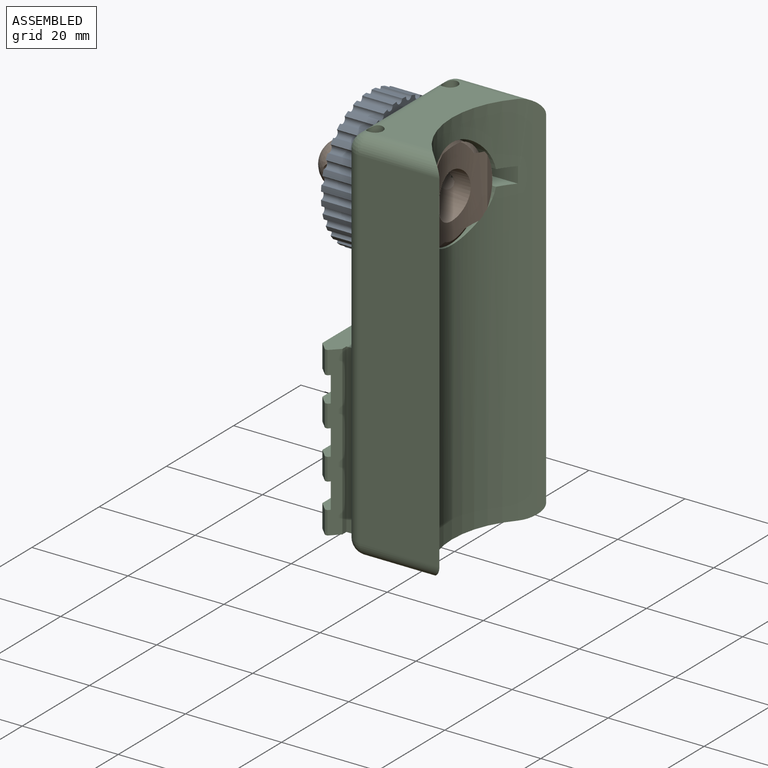
[diagram: assembled view]
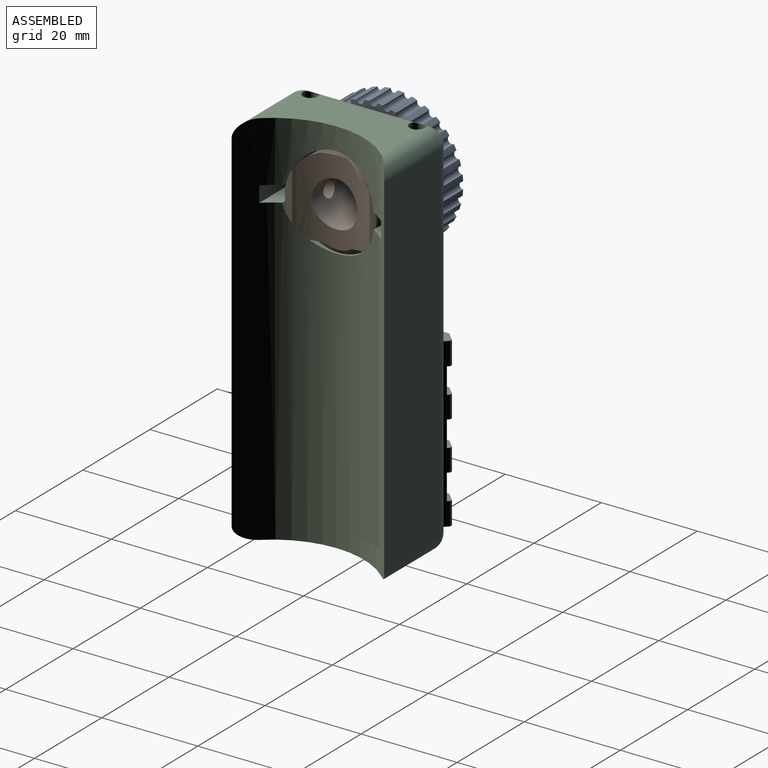
[diagram: assembled view, second angle]
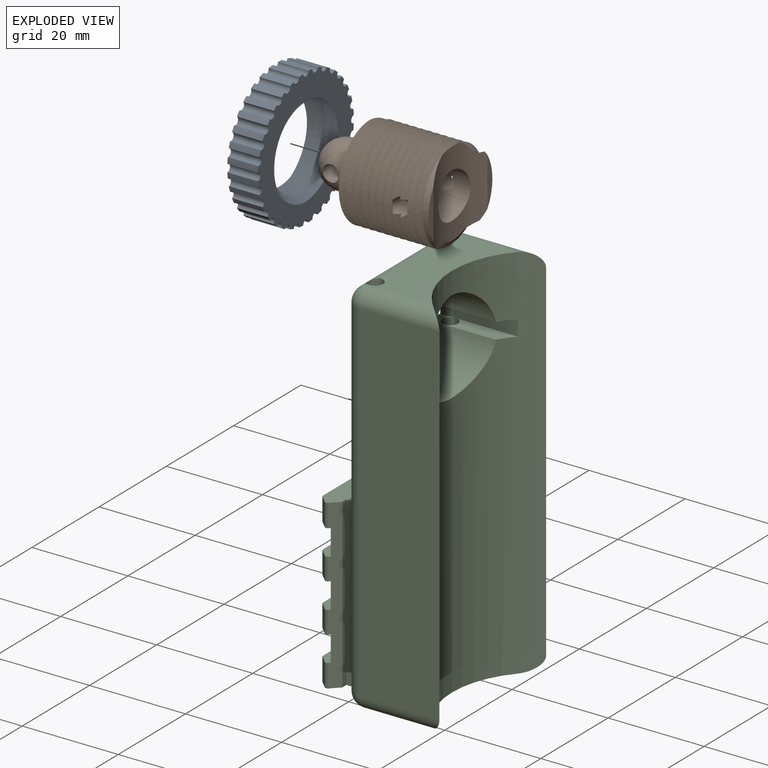
[diagram: exploded view]
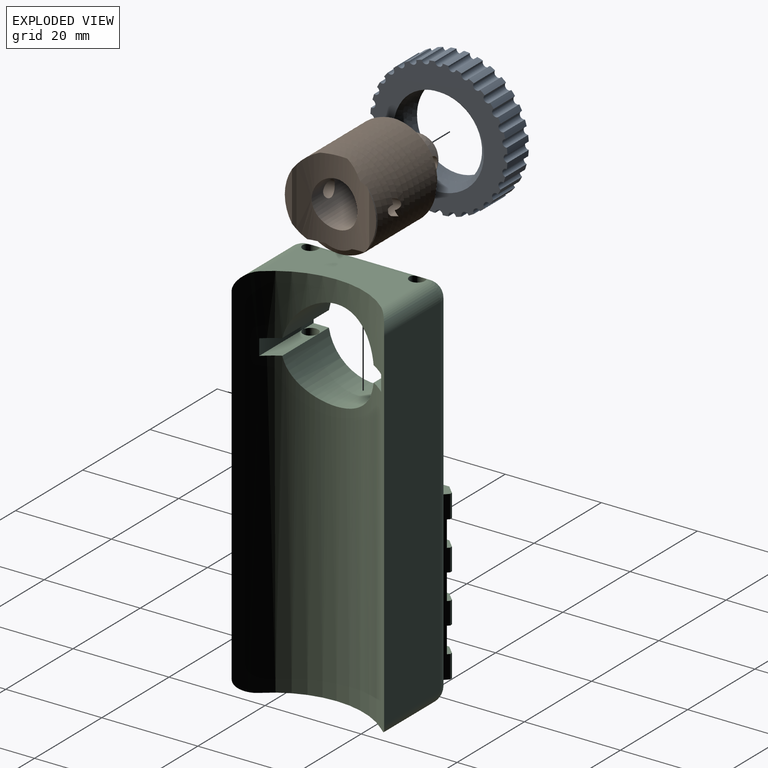
[diagram: exploded view, second angle]
ASSEMBLY  parts=3 mates=2
PART A: 69 faces, bbox 29.7x29.7x9.3 mm
  f0: cylinder r=0.79mm len=6.35mm, axis (0,0,-1), area 15.6mm2, adj f1,f64,f65,f66
  f1: cylinder r=14.29mm len=6.35mm, axis (0,0,-1), area 7.7mm2, adj f0,f2,f65,f66
  f2: cylinder r=0.79mm len=6.35mm, axis (0,0,-1), area 15.6mm2, adj f1,f3,f65,f66
  f3: cylinder r=14.29mm len=6.35mm, axis (0,0,-1), area 7.7mm2, adj f2,f4,f65,f66
  f4: cylinder r=0.79mm len=6.35mm, axis (0,0,-1), area 15.6mm2, adj f3,f5,f65,f66
  f5: cylinder r=14.29mm len=6.35mm, axis (0,0,-1), area 7.7mm2, adj f4,f6,f65,f66
  f6: cylinder r=0.79mm len=6.35mm, axis (0,0,-1), area 15.6mm2, adj f5,f7,f65,f66
  f7: cylinder r=14.29mm len=6.35mm, axis (0,0,-1), area 7.7mm2, adj f6,f8,f65,f66
  f8: cylinder r=0.79mm len=6.35mm, axis (0,0,-1), area 15.6mm2, adj f7,f9,f65,f66
  f9: cylinder r=14.29mm len=6.35mm, axis (0,0,-1), area 7.7mm2, adj f8,f10,f65,f66
  f10: cylinder r=0.79mm len=6.35mm, axis (0,0,-1), area 15.6mm2, adj f9,f11,f65,f66
  f11: cylinder r=14.29mm len=6.35mm, axis (0,0,-1), area 7.7mm2, adj f10,f12,f65,f66
  f12: cylinder r=0.79mm len=6.35mm, axis (0,0,-1), area 15.6mm2, adj f11,f13,f65,f66
  f13: cylinder r=14.29mm len=6.35mm, axis (0,0,-1), area 7.7mm2, adj f12,f14,f65,f66
  f14: cylinder r=0.79mm len=6.35mm, axis (0,0,-1), area 15.6mm2, adj f13,f15,f65,f66
  f15: cylinder r=14.29mm len=6.35mm, axis (0,0,-1), area 7.7mm2, adj f14,f16,f65,f66
  f16: cylinder r=0.79mm len=6.35mm, axis (0,0,-1), area 15.6mm2, adj f15,f17,f65,f66
  f17: cylinder r=14.29mm len=6.35mm, axis (0,0,-1), area 7.7mm2, adj f16,f18,f65,f66
  f18: cylinder r=0.79mm len=6.35mm, axis (0,0,-1), area 15.6mm2, adj f17,f19,f65,f66
  f19: cylinder r=14.29mm len=6.35mm, axis (0,0,-1), area 7.7mm2, adj f18,f20,f65,f66
  f20: cylinder r=0.79mm len=6.35mm, axis (0,0,-1), area 15.6mm2, adj f19,f21,f65,f66
  f21: cylinder r=14.29mm len=6.35mm, axis (0,0,-1), area 7.7mm2, adj f20,f22,f65,f66
  f22: cylinder r=0.79mm len=6.35mm, axis (0,0,-1), area 15.6mm2, adj f21,f23,f65,f66
  f23: cylinder r=14.29mm len=6.35mm, axis (0,0,-1), area 7.7mm2, adj f22,f24,f65,f66
  f24: cylinder r=0.79mm len=6.35mm, axis (0,0,-1), area 15.6mm2, adj f23,f25,f65,f66
  f25: cylinder r=14.29mm len=6.35mm, axis (0,0,-1), area 7.7mm2, adj f24,f26,f65,f66
  f26: cylinder r=0.79mm len=6.35mm, axis (0,0,-1), area 15.6mm2, adj f25,f27,f65,f66
  f27: cylinder r=14.29mm len=6.35mm, axis (0,0,-1), area 7.7mm2, adj f26,f28,f65,f66
  f28: cylinder r=0.79mm len=6.35mm, axis (0,0,-1), area 15.6mm2, adj f27,f29,f65,f66
  f29: cylinder r=14.29mm len=6.35mm, axis (0,0,-1), area 7.7mm2, adj f28,f30,f65,f66
  f30: cylinder r=0.79mm len=6.35mm, axis (0,0,-1), area 15.6mm2, adj f29,f31,f65,f66
  f31: cylinder r=14.29mm len=6.35mm, axis (0,0,-1), area 7.7mm2, adj f30,f32,f65,f66
  f32: cylinder r=0.79mm len=6.35mm, axis (0,0,-1), area 15.6mm2, adj f31,f33,f65,f66
  f33: cylinder r=14.29mm len=6.35mm, axis (0,0,-1), area 7.7mm2, adj f32,f34,f65,f66
  f34: cylinder r=0.79mm len=6.35mm, axis (0,0,-1), area 15.6mm2, adj f33,f35,f65,f66
  f35: cylinder r=14.29mm len=6.35mm, axis (0,0,-1), area 7.7mm2, adj f34,f36,f65,f66
  f36: cylinder r=0.79mm len=6.35mm, axis (0,0,-1), area 15.6mm2, adj f35,f37,f65,f66
  f37: cylinder r=14.29mm len=6.35mm, axis (0,0,-1), area 7.7mm2, adj f36,f38,f65,f66
  f38: cylinder r=0.79mm len=6.35mm, axis (0,0,-1), area 15.6mm2, adj f37,f39,f65,f66
  f39: cylinder r=14.29mm len=6.35mm, axis (0,0,-1), area 7.7mm2, adj f38,f40,f65,f66
  f40: cylinder r=0.79mm len=6.35mm, axis (0,0,-1), area 15.6mm2, adj f39,f41,f65,f66
  f41: cylinder r=14.29mm len=6.35mm, axis (0,0,-1), area 7.7mm2, adj f40,f42,f65,f66
  f42: cylinder r=0.79mm len=6.35mm, axis (0,0,-1), area 15.6mm2, adj f41,f43,f65,f66
  f43: cylinder r=14.29mm len=6.35mm, axis (0,0,-1), area 7.7mm2, adj f42,f44,f65,f66
  f44: cylinder r=0.79mm len=6.35mm, axis (0,0,-1), area 15.6mm2, adj f43,f45,f65,f66
  f45: cylinder r=14.29mm len=6.35mm, axis (0,0,-1), area 7.7mm2, adj f44,f46,f65,f66
  f46: cylinder r=0.79mm len=6.35mm, axis (0,0,-1), area 15.6mm2, adj f45,f47,f65,f66
  f47: cylinder r=14.29mm len=6.35mm, axis (0,0,-1), area 7.7mm2, adj f46,f48,f65,f66
  f48: cylinder r=0.79mm len=6.35mm, axis (0,0,-1), area 15.6mm2, adj f47,f49,f65,f66
  f49: cylinder r=14.29mm len=6.35mm, axis (0,0,-1), area 7.7mm2, adj f48,f50,f65,f66
  f50: cylinder r=0.79mm len=6.35mm, axis (0,0,-1), area 15.6mm2, adj f49,f51,f65,f66
  f51: cylinder r=14.29mm len=6.35mm, axis (0,0,-1), area 7.7mm2, adj f50,f52,f65,f66
  f52: cylinder r=0.79mm len=6.35mm, axis (0,0,-1), area 15.6mm2, adj f51,f53,f65,f66
  f53: cylinder r=14.29mm len=6.35mm, axis (0,0,-1), area 7.7mm2, adj f52,f54,f65,f66
  f54: cylinder r=0.79mm len=6.35mm, axis (0,0,-1), area 15.6mm2, adj f53,f55,f65,f66
  f55: cylinder r=14.29mm len=6.35mm, axis (0,0,-1), area 7.7mm2, adj f54,f56,f65,f66
  f56: cylinder r=0.79mm len=6.35mm, axis (0,0,-1), area 15.6mm2, adj f55,f57,f65,f66
  f57: cylinder r=14.29mm len=6.35mm, axis (0,0,-1), area 7.7mm2, adj f56,f58,f65,f66
  f58: cylinder r=0.79mm len=6.35mm, axis (0,0,-1), area 15.6mm2, adj f57,f59,f65,f66
  f59: cylinder r=14.29mm len=6.35mm, axis (0,0,-1), area 7.7mm2, adj f58,f60,f65,f66
  f60: cylinder r=0.79mm len=6.35mm, axis (0,0,-1), area 15.6mm2, adj f59,f61,f65,f66
  f61: cylinder r=14.29mm len=6.35mm, axis (0,0,-1), area 7.7mm2, adj f60,f62,f65,f66
  f62: cylinder r=0.79mm len=6.35mm, axis (0,0,-1), area 15.6mm2, adj f61,f64,f65,f66
  f63: cylinder r=8.73mm len=17.46mm, axis (0,0,-1), area 3.1mm2, adj f65,f66,f67,f68
  f64: cylinder r=14.29mm len=6.35mm, axis (0,0,-1), area 7.7mm2, adj f0,f62,f65,f66
  f65: plane 29.67x29.67mm, normal (0,0,1), area 331.5mm2, adj f0,f1,f2,f3,f4,f5,f6,f7
  f66: plane 29.67x29.67mm, normal (0,0,-1), area 331.5mm2, adj f0,f1,f2,f3,f4,f5,f6,f7
  f67: bspline ~23.31x20.19mm, area 373mm2, adj f63,f65,f66,f68
  f68: bspline ~23.31x20.19mm, area 372.9mm2, adj f63,f65,f66,f67
PART B: 28 faces, bbox 20.2x23.1x29.7 mm
  f0: cylinder r=9.53mm len=18.75mm, axis (0,0,1), area 0.3mm2, adj f13,f14,f20,f24
  f1: cylinder r=9.53mm len=18.82mm, axis (0,0,1), area 0.3mm2, adj f13,f14,f16,f22
  f2: cylinder r=9.53mm len=18.82mm, axis (0,0,1), area 0.3mm2, adj f13,f14,f21,f23
  f3: cylinder r=9.53mm len=19.05mm, axis (0,0,1), area 1.6mm2, adj f14,f15,f16,f18,f19
  f4: cylinder r=9.53mm len=16.7mm, axis (0,0,1), area 19mm2, adj f6,f15,f19
  f5: cylinder r=9.53mm len=12.72mm, axis (0,0,1), area 5mm2, adj f9,f15,f17
  f6: plane 10.23x1.49mm, normal (0,0,-1), area 10.3mm2, adj f4,f15
  f7: cylinder r=4.76mm len=10.92mm, axis (0,0,1), area 308.1mm2, adj f11,f13,f14,f15
  f8: cylinder r=9.53mm len=19.05mm, axis (0,0,1), area -0.3mm2, adj f10,f13,f23,f25
  f9: plane 10.23x1.49mm, normal (0,0,-1), area 10.3mm2, adj f5,f15
  f10: plane 18.88x18.86mm, normal (0,0,1), area 175.2mm2, adj f8,f12,f23,f25
  f11: plane 9.53x9.53mm, normal (0,0,-1), area 71.3mm2, adj f7
  f12: cylinder r=4.76mm len=9.53mm, axis (0,0,-1), area 142.5mm2, adj f10,f26,f27
  f13: cylinder r=1.71mm len=5.01mm, axis (0,-1,0), area 44.8mm2, adj f0,f1,f2,f7,f8,f16,f18,f19
  f14: cylinder r=1.71mm len=5.01mm, axis (0,-1,0), area 44.9mm2, adj f0,f1,f2,f3,f7,f16,f18,f20
  f15: cylinder r=19.05mm len=17.76mm, axis (1,0,0), area 182mm2, adj f3,f4,f5,f6,f7,f9,f16,f17
  f16: bspline ~22x19.05mm, area 230.3mm2, adj f1,f3,f13,f14,f15,f17,f19
  f17: bspline ~19.05x11mm, area 23.9mm2, adj f5,f15,f16
  f18: bspline ~22x14.29mm, area 40.4mm2, adj f3,f13,f14,f20
  f19: bspline ~22x19.05mm, area 189.7mm2, adj f3,f4,f13,f15,f16
  f20: bspline ~22x14.29mm, area 38.8mm2, adj f0,f13,f14,f18
  f21: bspline ~22x14.29mm, area 38.7mm2, adj f2,f13,f14,f22
  f22: bspline ~22x14.29mm, area 38.7mm2, adj f1,f13,f14,f21
  f23: bspline ~22x19.05mm, area 652.1mm2, adj f2,f8,f10,f13,f14,f25
  f24: bspline ~22x14.29mm, area 38.8mm2, adj f0,f13,f14,f25
  f25: bspline ~22x19.05mm, area 650.4mm2, adj f8,f10,f13,f14,f23,f24
  f26: cylinder r=1.71mm len=8.89mm, axis (0,-1,0), area 95.7mm2, adj f12,f27
  f27: sphere r=4.76mm, area 142.5mm2, adj f12,f26
PART C: 68 faces, bbox 29.2x31.8x79.4 mm
  f0: plane 60.26x25.4mm, normal (-1,0,0), area 919.2mm2, adj f24,f28,f36,f38,f40,f45,f59,f61
  f1: plane 18.09x4.76mm, normal (-1,0,0), area 86.1mm2, adj f9,f13,f36,f52
  f2: plane 18.09x4.65mm, normal (-1,0,0), area 84.1mm2, adj f10,f14,f49,f53
  f3: plane 18.09x4.65mm, normal (-1,0,0), area 84.1mm2, adj f11,f15,f46,f50
  f4: plane 34.93x1.83mm, normal (0.71,0.71,0), area 81.1mm2, adj f5,f6,f7,f8,f25,f35,f36,f46
  f5: plane 4.76x0.51mm, normal (0,1,0), area 2.4mm2, adj f4,f9,f36,f52
  f6: plane 4.65x0.51mm, normal (0,1,0), area 2.4mm2, adj f4,f10,f49,f53
  f7: plane 4.65x0.51mm, normal (0,1,0), area 2.4mm2, adj f4,f11,f46,f50
  f8: plane 4.79x0.51mm, normal (0,1,0), area 2.4mm2, adj f4,f12,f35,f47
  f9: plane 4.76x1.83mm, normal (-0.71,0.71,0), area 12.3mm2, adj f1,f5,f36,f52
  f10: plane 4.65x1.83mm, normal (-0.71,0.71,0), area 12mm2, adj f2,f6,f49,f53
  f11: plane 4.65x1.83mm, normal (-0.71,0.71,0), area 12mm2, adj f3,f7,f46,f50
  f12: plane 4.79x1.83mm, normal (-0.71,0.71,0), area 12.4mm2, adj f8,f26,f35,f47
  f13: plane 4.76x1.83mm, normal (-0.71,-0.71,0), area 12.3mm2, adj f1,f17,f36,f52
  f14: plane 4.65x1.83mm, normal (-0.71,-0.71,0), area 12mm2, adj f2,f18,f49,f53
  f15: plane 4.65x1.83mm, normal (-0.71,-0.71,0), area 12mm2, adj f3,f19,f46,f50
  f16: plane 4.79x1.83mm, normal (-0.71,-0.71,0), area 12.4mm2, adj f20,f26,f35,f47
  f17: plane 4.76x0.51mm, normal (0,-1,0), area 2.4mm2, adj f13,f21,f36,f52
  f18: plane 4.65x0.51mm, normal (0,-1,0), area 2.4mm2, adj f14,f21,f49,f53
  f19: plane 4.65x0.51mm, normal (0,-1,0), area 2.4mm2, adj f15,f21,f46,f50
  f20: plane 4.79x0.51mm, normal (0,-1,0), area 2.4mm2, adj f16,f21,f35,f47
  f21: plane 34.93x1.83mm, normal (0.71,-0.71,0), area 81.1mm2, adj f17,f18,f19,f20,f27,f35,f36,f46
  f22: cylinder r=1.59mm len=63.44mm, axis (0,0,1), area 631.7mm2, adj f35,f40,f59
  f23: cylinder r=1.59mm len=63.44mm, axis (0,0,1), area 631.7mm2, adj f35,f45,f61
  f24: plane 34.93x8.33mm, normal (0,1,0), area 182.2mm2, adj f0,f25,f35,f36,f61
  f25: plane 34.93x1.22mm, normal (1,0,0), area 42.6mm2, adj f4,f24,f35,f36
  f26: plane 18.09x4.79mm, normal (-1,0,0), area 86.6mm2, adj f12,f16,f35,f47
  f27: plane 34.93x1.22mm, normal (1,0,0), area 42.6mm2, adj f21,f28,f35,f36
  f28: plane 34.93x8.33mm, normal (0,-1,0), area 182.2mm2, adj f0,f27,f35,f36,f59
  f29: plane 25.4x9.46mm, normal (-1,0,0), area 125.7mm2, adj f39,f42,f43,f56,f63,f66
  f30: plane 73.03x16.66mm, normal (0,-1,0), area 1216.6mm2, adj f31,f55,f58,f63
  f31: cylinder r=19.05mm len=79.38mm, axis (0,0,1), area 2636.3mm2, adj f30,f32,f35,f37,f38,f39,f40,f41
  f32: plane 73.03x16.66mm, normal (0,1,0), area 1216.6mm2, adj f31,f57,f60,f66
  f33: cylinder r=1.59mm len=12.64mm, axis (0,0,1), area 125mm2, adj f37,f42,f56
  f34: cylinder r=1.59mm len=12.64mm, axis (0,0,1), area 125mm2, adj f37,f43,f56
  f35: plane 25.49x25.4mm, normal (0,0,-1), area 451.8mm2, adj f4,f8,f12,f16,f20,f21,f22,f23
  f36: plane 21.74x9.32mm, normal (0,0,1), area 164.6mm2, adj f0,f1,f4,f5,f9,f13,f17,f21
  f37: plane 25.4x12.99mm, normal (0,0,1), area 237.6mm2, adj f31,f33,f34,f55,f56,f57
  f38: cylinder r=9.65mm len=19.02mm, axis (-1,0,0), area 336mm2, adj f0,f31,f40,f45
  f39: cylinder r=9.65mm len=19.02mm, axis (-1,0,0), area 336mm2, adj f29,f31,f42,f43
  f40: plane 16.17x3.19mm, normal (0,0,1), area 39.7mm2, adj f0,f22,f31,f38,f41
  f41: plane 16.17x3.3mm, normal (0,1,0), area 53.4mm2, adj f31,f40,f42,f63
  f42: plane 16.17x3.19mm, normal (0,0,-1), area 39.7mm2, adj f29,f31,f33,f39,f41
  f43: plane 16.17x3.19mm, normal (0,0,-1), area 39.7mm2, adj f29,f31,f34,f39,f44
  f44: plane 16.17x3.3mm, normal (0,-1,0), area 53.4mm2, adj f31,f43,f45,f66
  f45: plane 16.17x3.19mm, normal (0,0,1), area 39.7mm2, adj f0,f23,f31,f38,f44
  f46: plane 21.74x2.74mm, normal (0,0,-1), area 56.1mm2, adj f3,f4,f7,f11,f15,f19,f21,f48
  f47: plane 21.74x2.74mm, normal (0,0,1), area 56.1mm2, adj f4,f8,f12,f16,f20,f21,f26,f48
  f48: plane 20.93x5.36mm, normal (-1,0,0), area 112.2mm2, adj f4,f21,f46,f47
  f49: plane 21.74x2.74mm, normal (0,0,-1), area 56.1mm2, adj f2,f4,f6,f10,f14,f18,f21,f51
  f50: plane 21.74x2.74mm, normal (0,0,1), area 56.1mm2, adj f3,f4,f7,f11,f15,f19,f21,f51
  f51: plane 20.93x5.36mm, normal (-1,0,0), area 112.2mm2, adj f4,f21,f49,f50
  f52: plane 21.74x2.74mm, normal (0,0,-1), area 56.1mm2, adj f1,f4,f5,f9,f13,f17,f21,f54
  f53: plane 21.74x2.74mm, normal (0,0,1), area 56.1mm2, adj f2,f4,f6,f10,f14,f18,f21,f54
  f54: plane 20.93x5.36mm, normal (-1,0,0), area 112.2mm2, adj f4,f21,f52,f53
  f55: cylinder r=3.17mm len=16.66mm, axis (1,0,0), area 75.8mm2, adj f30,f31,f37,f62
  f56: cylinder r=3.17mm len=25.4mm, axis (0,-1,0), area 118.5mm2, adj f29,f33,f34,f37,f62,f65
  f57: cylinder r=3.17mm len=16.66mm, axis (-1,0,0), area 75.8mm2, adj f31,f32,f37,f65
  f58: cylinder r=3.17mm len=16.66mm, axis (-1,0,0), area 75.8mm2, adj f30,f31,f35,f64
  f59: cylinder r=3.17mm len=4.88mm, axis (0,1,0), area 20.2mm2, adj f0,f22,f28,f35,f64
  f60: cylinder r=3.17mm len=16.66mm, axis (1,0,0), area 75.8mm2, adj f31,f32,f35,f67
  f61: cylinder r=3.17mm len=4.88mm, axis (0,1,0), area 20.2mm2, adj f0,f23,f24,f35,f67
  f62: sphere r=3.17mm, area 15.8mm2, adj f55,f56,f63
  f63: cylinder r=3.17mm len=73.03mm, axis (0,0,1), area 364.2mm2, adj f0,f29,f30,f41,f62,f64
  f64: sphere r=3.17mm, area 15.8mm2, adj f58,f59,f63
  f65: sphere r=3.17mm, area 15.8mm2, adj f56,f57,f66
  f66: cylinder r=3.17mm len=73.03mm, axis (0,0,-1), area 364.2mm2, adj f0,f29,f32,f44,f65,f67
  f67: sphere r=3.17mm, area 15.8mm2, adj f60,f61,f66
PLACE A rot(axis=(0,-1,0),90deg) t=(-16.93,-9.3,33.67)mm
PLACE B rot(axis=(0,-1,0),90deg) t=(-23.28,-9.32,32.89)mm
PLACE C t=(-17.33,-9.32,3.08)mm fixed
MATE fastened B.f15 <-> C.f31  axis (0,0,1) through (13.04,-9.32,33.24)mm
MATE fastened A.f64 <-> B.f10  axis (-1,0,0) through (-23.28,-9.3,33.67)mm
